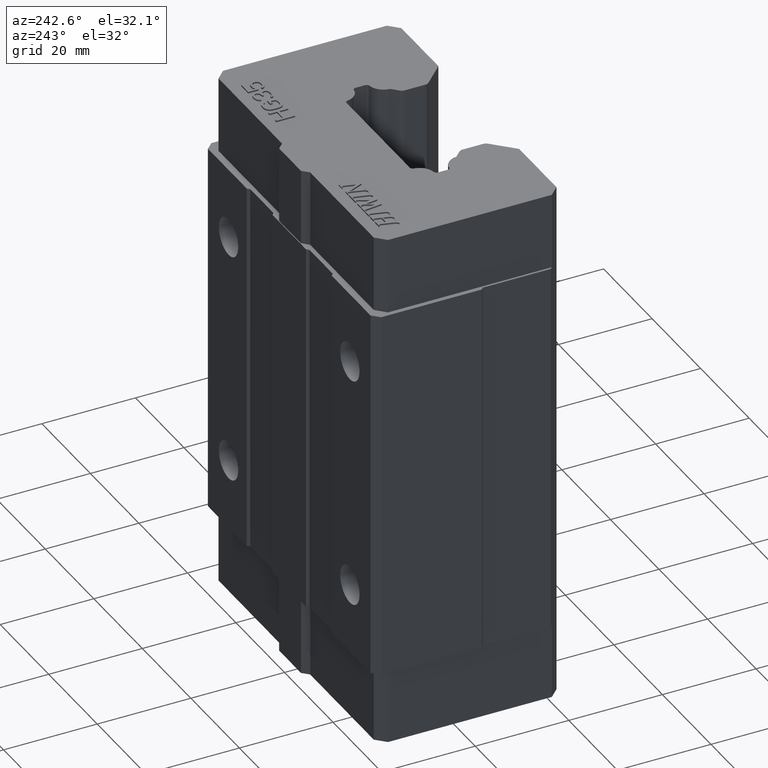
[diagram: clean part render]
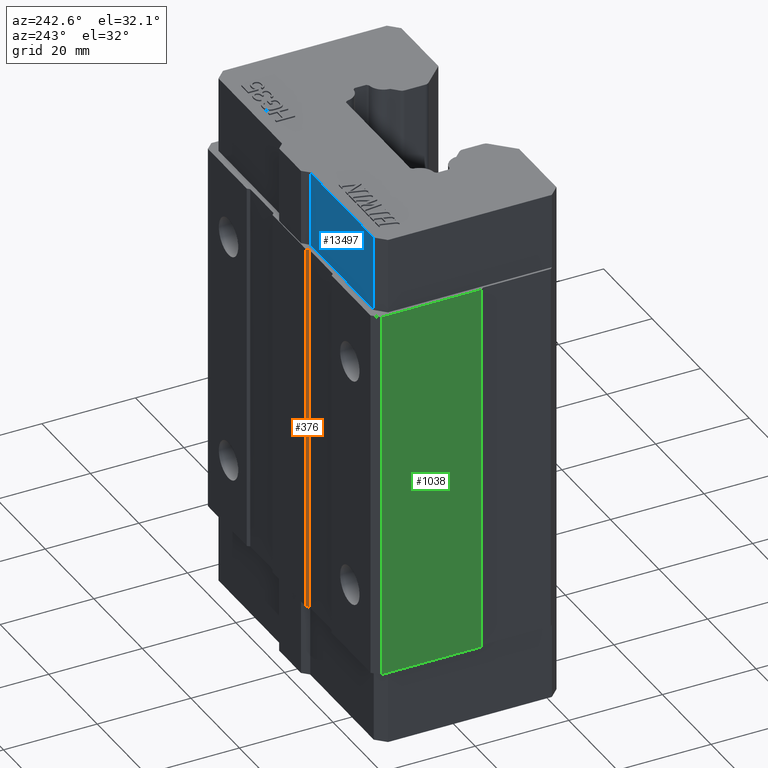
[diagram: same view with three faces highlighted in distinct colors, each labeled with its STEP entity id]
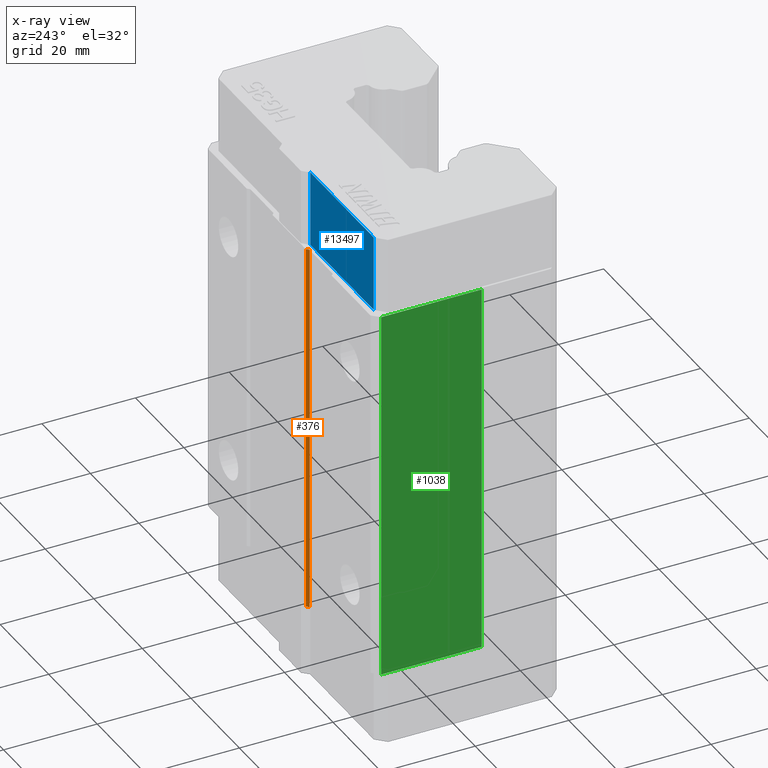
[diagram: x-ray of the same camera — body ghosted, the three highlighted faces saturated]
A machine part, auxiliary view with three faces highlighted in distinct colors.
The next image is the same camera in x-ray (body ghosted, the three faces saturated) — at least one of them is partly hidden behind the body in this view.
Their STEP definitions:

[orange] entity #376 — the highlighted planar face has unit normal (0.7071, -0.7071, 0).
#131 = VERTEX_POINT ( 'NONE', #2824 ) ;
#137 = EDGE_CURVE ( 'NONE', #131, #366, #2815, .T. ) ;
#139 = ORIENTED_EDGE ( 'NONE', *, *, #422, .F. ) ;
#204 = ORIENTED_EDGE ( 'NONE', *, *, #377, .F. ) ;
#366 = VERTEX_POINT ( 'NONE', #3326 ) ;
#367 = VERTEX_POINT ( 'NONE', #3325 ) ;
#370 = VERTEX_POINT ( 'NONE', #3324 ) ;
#372 = ORIENTED_EDGE ( 'NONE', *, *, #137, .T. ) ;
#376 = ADVANCED_FACE ( 'NONE', ( #3316 ), #3374, .F. ) ;
#377 = EDGE_CURVE ( 'NONE', #131, #367, #3369, .T. ) ;
#416 = EDGE_LOOP ( 'NONE', ( #204, #372, #139, #424 ) ) ;
#422 = EDGE_CURVE ( 'NONE', #370, #366, #3516, .T. ) ;
#424 = ORIENTED_EDGE ( 'NONE', *, *, #426, .T. ) ;
#426 = EDGE_CURVE ( 'NONE', #370, #367, #3510, .T. ) ;
#2812 = DIRECTION ( 'NONE',  ( 0.0000000000000000000, 0.0000000000000000000, -1.000000000000000000 ) ) ;
#2813 = VECTOR ( 'NONE', #2812, 1000.000000000000000 ) ;
#2814 = CARTESIAN_POINT ( 'NONE',  ( -6.900000002899999700, 19.00000000000000000, 40.00000000000000000 ) ) ;
#2815 = LINE ( 'NONE', #2814, #2813 ) ;
#2824 = CARTESIAN_POINT ( 'NONE',  ( -6.900000002900016600, 19.00000000000001800, 40.00000000000000000 ) ) ;
#3316 = FACE_OUTER_BOUND ( 'NONE', #416, .T. ) ;
#3324 = CARTESIAN_POINT ( 'NONE',  ( -7.400000001450000500, 18.50000000145000100, -40.00000000000000000 ) ) ;
#3325 = CARTESIAN_POINT ( 'NONE',  ( -7.400000001450000500, 18.50000000145000100, 40.00000000000000000 ) ) ;
#3326 = CARTESIAN_POINT ( 'NONE',  ( -6.900000002900016600, 19.00000000000001800, -40.00000000000000000 ) ) ;
#3366 = DIRECTION ( 'NONE',  ( -0.7071067811864976100, -0.7071067811865975300, 0.0000000000000000000 ) ) ;
#3367 = VECTOR ( 'NONE', #3366, 1000.000000000000100 ) ;
#3368 = CARTESIAN_POINT ( 'NONE',  ( -7.400000001450000500, 18.50000000145000100, 40.00000000000000000 ) ) ;
#3369 = LINE ( 'NONE', #3368, #3367 ) ;
#3370 = DIRECTION ( 'NONE',  ( 0.7071067811864976100, 0.7071067811865975300, 0.0000000000000000000 ) ) ;
#3371 = DIRECTION ( 'NONE',  ( 0.7071067811865975300, -0.7071067811864976100, 0.0000000000000000000 ) ) ;
#3372 = CARTESIAN_POINT ( 'NONE',  ( -7.400000001450000500, 18.50000000145000100, 40.00000000000000000 ) ) ;
#3373 = AXIS2_PLACEMENT_3D ( 'NONE', #3372, #3371, #3370 ) ;
#3374 = PLANE ( 'NONE',  #3373 ) ;
#3507 = DIRECTION ( 'NONE',  ( 0.0000000000000000000, 0.0000000000000000000, 1.000000000000000000 ) ) ;
#3508 = VECTOR ( 'NONE', #3507, 1000.000000000000000 ) ;
#3509 = CARTESIAN_POINT ( 'NONE',  ( -7.400000001450000500, 18.50000000145000100, 40.00000000000000000 ) ) ;
#3510 = LINE ( 'NONE', #3509, #3508 ) ;
#3513 = DIRECTION ( 'NONE',  ( 0.7071067811864976100, 0.7071067811865975300, 0.0000000000000000000 ) ) ;
#3514 = VECTOR ( 'NONE', #3513, 1000.000000000000100 ) ;
#3515 = CARTESIAN_POINT ( 'NONE',  ( -7.400000001450000500, 18.50000000145000100, -40.00000000000000000 ) ) ;
#3516 = LINE ( 'NONE', #3515, #3514 ) ;

[blue] entity #13497 — the highlighted planar face has unit normal (0, 1, 0).
#1774 = VERTEX_POINT ( 'NONE', #5656 ) ;
#1776 = EDGE_CURVE ( 'NONE', #1777, #1774, #5655, .T. ) ;
#1777 = VERTEX_POINT ( 'NONE', #5722 ) ;
#5655 = LINE ( 'NONE', #5726, #5724 ) ;
#5656 = CARTESIAN_POINT ( 'NONE',  ( -32.04647986722999800, 17.54575714772999700, 39.99999999999999300 ) ) ;
#5722 = CARTESIAN_POINT ( 'NONE',  ( -5.846479867227969900, 17.54575714772996900, 39.99999999999999300 ) ) ;
#5723 = DIRECTION ( 'NONE',  ( -1.000000000000000000, 0.0000000000000000000, 0.0000000000000000000 ) ) ;
#5724 = VECTOR ( 'NONE', #5723, 1000.000000000000000 ) ;
#5726 = CARTESIAN_POINT ( 'NONE',  ( -5.846479867228000100, 17.54575714773000100, 40.00000000000000000 ) ) ;
#6130 = ORIENTED_EDGE ( 'NONE', *, *, #13488, .T. ) ;
#11805 = CARTESIAN_POINT ( 'NONE',  ( -32.04647986722999800, 17.54575714773000100, 56.20000000000001000 ) ) ;
#11838 = LINE ( 'NONE', #11881, #11880 ) ;
#11852 = CARTESIAN_POINT ( 'NONE',  ( -5.846479867228000900, 17.54575714773000100, 56.20000000000001000 ) ) ;
#11853 = DIRECTION ( 'NONE',  ( 0.0000000000000000000, 0.0000000000000000000, 1.000000000000000000 ) ) ;
#11854 = DIRECTION ( 'NONE',  ( 0.0000000000000000000, 1.000000000000000000, 0.0000000000000000000 ) ) ;
#11855 = CARTESIAN_POINT ( 'NONE',  ( -5.846479867228000100, 17.54575714773000100, 40.00000000000000000 ) ) ;
#11856 = AXIS2_PLACEMENT_3D ( 'NONE', #11855, #11854, #11853 ) ;
#11857 = PLANE ( 'NONE',  #11856 ) ;
#11866 = FACE_OUTER_BOUND ( 'NONE', #13496, .T. ) ;
#11879 = DIRECTION ( 'NONE',  ( 0.0000000000000000000, 0.0000000000000000000, -1.000000000000000000 ) ) ;
#11880 = VECTOR ( 'NONE', #11879, 1000.000000000000000 ) ;
#11881 = CARTESIAN_POINT ( 'NONE',  ( -5.846479867228000100, 17.54575714773000100, 40.00000000000000000 ) ) ;
#11900 = DIRECTION ( 'NONE',  ( -1.000000000000000000, 0.0000000000000000000, 0.0000000000000000000 ) ) ;
#11901 = VECTOR ( 'NONE', #11900, 1000.000000000000000 ) ;
#11902 = CARTESIAN_POINT ( 'NONE',  ( 0.0000000000000000000, 17.54575714773000100, 56.20000000000001000 ) ) ;
#11903 = LINE ( 'NONE', #11902, #11901 ) ;
#11904 = DIRECTION ( 'NONE',  ( 0.0000000000000000000, 0.0000000000000000000, -1.000000000000000000 ) ) ;
#11905 = VECTOR ( 'NONE', #11904, 1000.000000000000000 ) ;
#11906 = CARTESIAN_POINT ( 'NONE',  ( -32.04647986722999800, 17.54575714773000100, 40.00000000000000000 ) ) ;
#11908 = LINE ( 'NONE', #11906, #11905 ) ;
#13469 = ORIENTED_EDGE ( 'NONE', *, *, #1776, .T. ) ;
#13470 = ORIENTED_EDGE ( 'NONE', *, *, #13498, .F. ) ;
#13471 = ORIENTED_EDGE ( 'NONE', *, *, #13501, .F. ) ;
#13472 = VERTEX_POINT ( 'NONE', #11852 ) ;
#13477 = VERTEX_POINT ( 'NONE', #11805 ) ;
#13488 = EDGE_CURVE ( 'NONE', #13472, #1777, #11838, .T. ) ;
#13496 = EDGE_LOOP ( 'NONE', ( #6130, #13469, #13470, #13471 ) ) ;
#13497 = ADVANCED_FACE ( 'NONE', ( #11866 ), #11857, .T. ) ;
#13498 = EDGE_CURVE ( 'NONE', #13477, #1774, #11908, .T. ) ;
#13501 = EDGE_CURVE ( 'NONE', #13472, #13477, #11903, .T. ) ;

[green] entity #1038 — the highlighted planar face has unit normal (-1, 0, 0).
#1038 = ADVANCED_FACE ( 'NONE', ( #4946 ), #4945, .T. ) ;
#1039 = VERTEX_POINT ( 'NONE', #4939 ) ;
#1040 = EDGE_LOOP ( 'NONE', ( #1131, #1128, #1118, #1125 ) ) ;
#1111 = VERTEX_POINT ( 'NONE', #4984 ) ;
#1116 = EDGE_CURVE ( 'NONE', #1111, #1120, #5037, .T. ) ;
#1118 = ORIENTED_EDGE ( 'NONE', *, *, #1124, .T. ) ;
#1120 = VERTEX_POINT ( 'NONE', #5032 ) ;
#1124 = EDGE_CURVE ( 'NONE', #1111, #1126, #5027, .T. ) ;
#1125 = ORIENTED_EDGE ( 'NONE', *, *, #1190, .T. ) ;
#1126 = VERTEX_POINT ( 'NONE', #5023 ) ;
#1127 = EDGE_CURVE ( 'NONE', #1120, #1039, #5022, .T. ) ;
#1128 = ORIENTED_EDGE ( 'NONE', *, *, #1116, .F. ) ;
#1131 = ORIENTED_EDGE ( 'NONE', *, *, #1127, .F. ) ;
#1190 = EDGE_CURVE ( 'NONE', #1126, #1039, #4771, .T. ) ;
#4768 = DIRECTION ( 'NONE',  ( 0.0000000000000000000, -1.000000000000000000, 0.0000000000000000000 ) ) ;
#4769 = VECTOR ( 'NONE', #4768, 1000.000000000000000 ) ;
#4770 = CARTESIAN_POINT ( 'NONE',  ( -35.00000000000000000, 0.0000000000000000000, -40.00000000000000000 ) ) ;
#4771 = LINE ( 'NONE', #4770, #4769 ) ;
#4939 = CARTESIAN_POINT ( 'NONE',  ( -35.00000000000000000, -4.000000000000000000, -40.00000000000000000 ) ) ;
#4941 = DIRECTION ( 'NONE',  ( 0.0000000000000000000, 0.0000000000000000000, 1.000000000000000000 ) ) ;
#4942 = DIRECTION ( 'NONE',  ( -1.000000000000000000, 0.0000000000000000000, 0.0000000000000000000 ) ) ;
#4943 = CARTESIAN_POINT ( 'NONE',  ( -35.00000000000000000, 24.50000000000000000, -40.00000000000000000 ) ) ;
#4944 = AXIS2_PLACEMENT_3D ( 'NONE', #4943, #4942, #4941 ) ;
#4945 = PLANE ( 'NONE',  #4944 ) ;
#4946 = FACE_OUTER_BOUND ( 'NONE', #1040, .T. ) ;
#4984 = CARTESIAN_POINT ( 'NONE',  ( -35.00000000000000000, 17.50000000000000000, 40.00000000000000000 ) ) ;
#5019 = DIRECTION ( 'NONE',  ( 0.0000000000000000000, 0.0000000000000000000, -1.000000000000000000 ) ) ;
#5020 = VECTOR ( 'NONE', #5019, 1000.000000000000000 ) ;
#5021 = CARTESIAN_POINT ( 'NONE',  ( -35.00000000000000000, -4.000000000000000000, 40.00000000000000000 ) ) ;
#5022 = LINE ( 'NONE', #5021, #5020 ) ;
#5023 = CARTESIAN_POINT ( 'NONE',  ( -35.00000000000000000, 17.50000000000000000, -40.00000000000000700 ) ) ;
#5024 = DIRECTION ( 'NONE',  ( 0.0000000000000000000, 0.0000000000000000000, -1.000000000000000000 ) ) ;
#5025 = VECTOR ( 'NONE', #5024, 1000.000000000000000 ) ;
#5026 = CARTESIAN_POINT ( 'NONE',  ( -35.00000000000000000, 17.50000000000000000, 40.00000000000000000 ) ) ;
#5027 = LINE ( 'NONE', #5026, #5025 ) ;
#5032 = CARTESIAN_POINT ( 'NONE',  ( -35.00000000000000000, -4.000000000000000000, 40.00000000000000000 ) ) ;
#5034 = DIRECTION ( 'NONE',  ( 0.0000000000000000000, -1.000000000000000000, 0.0000000000000000000 ) ) ;
#5035 = VECTOR ( 'NONE', #5034, 1000.000000000000000 ) ;
#5036 = CARTESIAN_POINT ( 'NONE',  ( -35.00000000000000000, 0.0000000000000000000, 40.00000000000000000 ) ) ;
#5037 = LINE ( 'NONE', #5036, #5035 ) ;